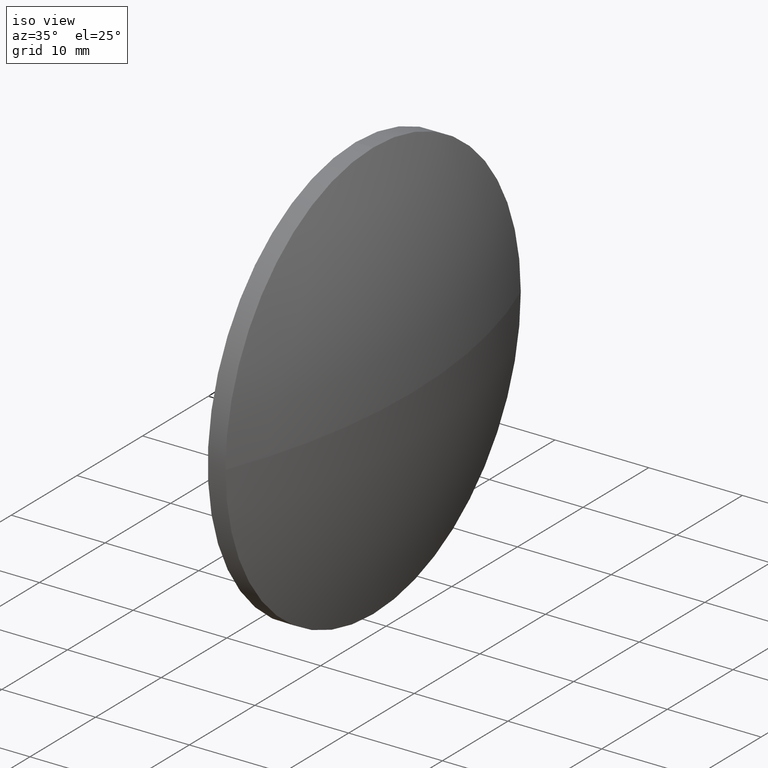
[diagram: clean part render]
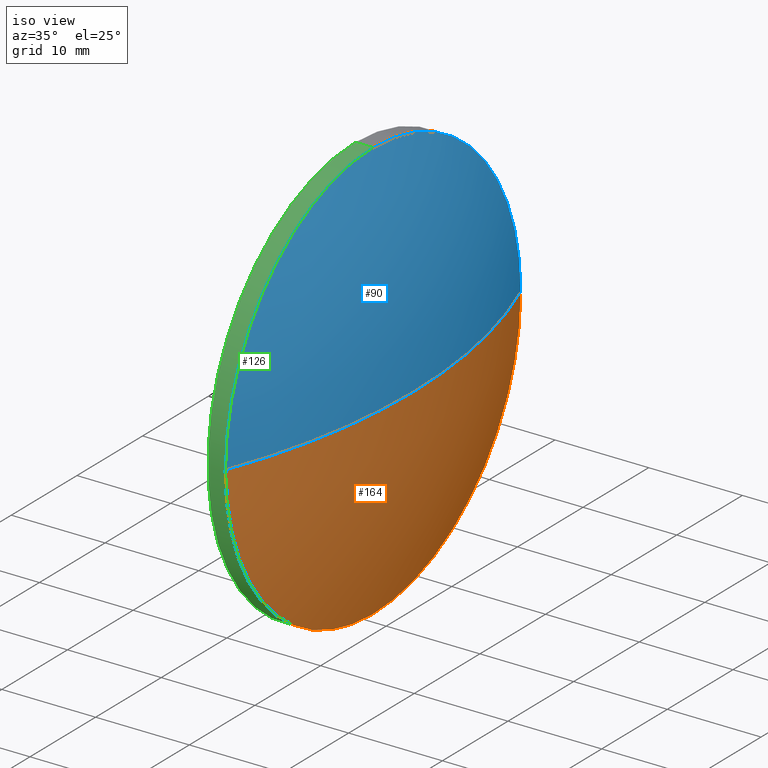
[diagram: same view with three faces highlighted in distinct colors, each labeled with its STEP entity id]
A machine part, iso view with three faces highlighted in distinct colors.
Their STEP definitions:

[orange] entity #164 — the highlighted spherical surface has radius 62.2297 mm.
#1 = DIRECTION ( 'NONE',  ( -1.000000000000000000, -0.0000000000000000000, -0.0000000000000000000 ) ) ;
#4 = EDGE_CURVE ( 'NONE', #92, #18, #85, .T. ) ;
#7 = CIRCLE ( 'NONE', #161, 22.50000000000000000 ) ;
#8 = EDGE_CURVE ( 'NONE', #86, #107, #7, .T. ) ;
#10 = EDGE_CURVE ( 'NONE', #92, #86, #149, .T. ) ;
#11 = ORIENTED_EDGE ( 'NONE', *, *, #13, .F. ) ;
#13 = EDGE_CURVE ( 'NONE', #107, #18, #115, .T. ) ;
#16 = DIRECTION ( 'NONE',  ( 1.000000000000000000, 0.0000000000000000000, 0.0000000000000000000 ) ) ;
#18 = VERTEX_POINT ( 'NONE', #63 ) ;
#20 = CARTESIAN_POINT ( 'NONE',  ( 330.8057438110801100, -20.30678025366819700, 0.0000000000000000000 ) ) ;
#22 = CARTESIAN_POINT ( 'NONE',  ( 393.0354468989660900, -20.30678025366819400, 0.0000000000000000000 ) ) ;
#28 = EDGE_LOOP ( 'NONE', ( #71, #186, #11, #128 ) ) ;
#30 = DIRECTION ( 'NONE',  ( 0.0000000000000000000, 0.0000000000000000000, 1.000000000000000000 ) ) ;
#31 = CARTESIAN_POINT ( 'NONE',  ( 388.8254468989661100, -20.30678025366819400, 0.0000000000000000000 ) ) ;
#48 = AXIS2_PLACEMENT_3D ( 'NONE', #76, #108, #16 ) ;
#49 = DIRECTION ( 'NONE',  ( 0.0000000000000000000, 0.0000000000000000000, 1.000000000000000000 ) ) ;
#51 = DIRECTION ( 'NONE',  ( -1.000000000000000000, -0.0000000000000000000, -0.0000000000000000000 ) ) ;
#53 = AXIS2_PLACEMENT_3D ( 'NONE', #104, #172, #89 ) ;
#63 = CARTESIAN_POINT ( 'NONE',  ( 388.8254468989661100, -42.80678025366819400, -2.755455298081544800E-015 ) ) ;
#71 = ORIENTED_EDGE ( 'NONE', *, *, #10, .F. ) ;
#76 = CARTESIAN_POINT ( 'NONE',  ( 330.8057438110801100, -20.30678025366819700, 0.0000000000000000000 ) ) ;
#85 = CIRCLE ( 'NONE', #53, 62.22970308788594500 ) ;
#86 = VERTEX_POINT ( 'NONE', #178 ) ;
#89 = DIRECTION ( 'NONE',  ( 0.0000000000000000000, 1.000000000000000000, 1.224646799147353500E-016 ) ) ;
#91 = SPHERICAL_SURFACE ( 'NONE', #175, 62.22970308788595200 ) ;
#92 = VERTEX_POINT ( 'NONE', #22 ) ;
#94 = DIRECTION ( 'NONE',  ( 0.0000000000000000000, 1.000000000000000000, 0.0000000000000000000 ) ) ;
#104 = CARTESIAN_POINT ( 'NONE',  ( 330.8057438110801100, -20.30678025366819700, 0.0000000000000000000 ) ) ;
#107 = VERTEX_POINT ( 'NONE', #163 ) ;
#108 = DIRECTION ( 'NONE',  ( -0.0000000000000000000, 0.0000000000000000000, 1.000000000000000000 ) ) ;
#115 = CIRCLE ( 'NONE', #144, 22.50000000000000000 ) ;
#119 = CARTESIAN_POINT ( 'NONE',  ( 388.8254468989661100, -20.30678025366819400, 0.0000000000000000000 ) ) ;
#128 = ORIENTED_EDGE ( 'NONE', *, *, #8, .F. ) ;
#133 = FACE_OUTER_BOUND ( 'NONE', #28, .T. ) ;
#144 = AXIS2_PLACEMENT_3D ( 'NONE', #119, #51, #30 ) ;
#149 = CIRCLE ( 'NONE', #48, 62.22970308788594500 ) ;
#161 = AXIS2_PLACEMENT_3D ( 'NONE', #31, #1, #49 ) ;
#162 = DIRECTION ( 'NONE',  ( -0.0000000000000000000, 0.0000000000000000000, -1.000000000000000000 ) ) ;
#163 = CARTESIAN_POINT ( 'NONE',  ( 388.8254468989661100, -20.30678025366819000, -22.50000000000000000 ) ) ;
#164 = ADVANCED_FACE ( 'NONE', ( #133 ), #91, .T. ) ;
#172 = DIRECTION ( 'NONE',  ( 0.0000000000000000000, 1.224646799147353200E-016, -1.000000000000000000 ) ) ;
#175 = AXIS2_PLACEMENT_3D ( 'NONE', #20, #162, #94 ) ;
#178 = CARTESIAN_POINT ( 'NONE',  ( 388.8254468989661100, 2.193219746331801700, 0.0000000000000000000 ) ) ;
#186 = ORIENTED_EDGE ( 'NONE', *, *, #4, .T. ) ;

[blue] entity #90 — the highlighted spherical surface has radius 62.2297 mm.
#3 = DIRECTION ( 'NONE',  ( -0.0000000000000000000, 0.0000000000000000000, -1.000000000000000000 ) ) ;
#4 = EDGE_CURVE ( 'NONE', #92, #18, #85, .T. ) ;
#6 = CARTESIAN_POINT ( 'NONE',  ( 388.8254468989661100, -20.30678025366819400, 0.0000000000000000000 ) ) ;
#10 = EDGE_CURVE ( 'NONE', #92, #86, #149, .T. ) ;
#16 = DIRECTION ( 'NONE',  ( 1.000000000000000000, 0.0000000000000000000, 0.0000000000000000000 ) ) ;
#18 = VERTEX_POINT ( 'NONE', #63 ) ;
#19 = EDGE_CURVE ( 'NONE', #18, #79, #118, .T. ) ;
#22 = CARTESIAN_POINT ( 'NONE',  ( 393.0354468989660900, -20.30678025366819400, 0.0000000000000000000 ) ) ;
#27 = AXIS2_PLACEMENT_3D ( 'NONE', #6, #80, #177 ) ;
#32 = CIRCLE ( 'NONE', #27, 22.50000000000000000 ) ;
#37 = ORIENTED_EDGE ( 'NONE', *, *, #78, .F. ) ;
#48 = AXIS2_PLACEMENT_3D ( 'NONE', #76, #108, #16 ) ;
#53 = AXIS2_PLACEMENT_3D ( 'NONE', #104, #172, #89 ) ;
#60 = CARTESIAN_POINT ( 'NONE',  ( 388.8254468989661100, -20.30678025366819400, 22.50000000000000000 ) ) ;
#63 = CARTESIAN_POINT ( 'NONE',  ( 388.8254468989661100, -42.80678025366819400, -2.755455298081544800E-015 ) ) ;
#65 = CARTESIAN_POINT ( 'NONE',  ( 330.8057438110801100, -20.30678025366819700, 0.0000000000000000000 ) ) ;
#76 = CARTESIAN_POINT ( 'NONE',  ( 330.8057438110801100, -20.30678025366819700, 0.0000000000000000000 ) ) ;
#78 = EDGE_CURVE ( 'NONE', #79, #86, #32, .T. ) ;
#79 = VERTEX_POINT ( 'NONE', #60 ) ;
#80 = DIRECTION ( 'NONE',  ( -1.000000000000000000, -0.0000000000000000000, -0.0000000000000000000 ) ) ;
#85 = CIRCLE ( 'NONE', #53, 62.22970308788594500 ) ;
#86 = VERTEX_POINT ( 'NONE', #178 ) ;
#88 = EDGE_LOOP ( 'NONE', ( #154, #174, #37, #114 ) ) ;
#89 = DIRECTION ( 'NONE',  ( 0.0000000000000000000, 1.000000000000000000, 1.224646799147353500E-016 ) ) ;
#90 = ADVANCED_FACE ( 'NONE', ( #143 ), #155, .T. ) ;
#92 = VERTEX_POINT ( 'NONE', #22 ) ;
#104 = CARTESIAN_POINT ( 'NONE',  ( 330.8057438110801100, -20.30678025366819700, 0.0000000000000000000 ) ) ;
#105 = CARTESIAN_POINT ( 'NONE',  ( 388.8254468989661100, -20.30678025366819400, 0.0000000000000000000 ) ) ;
#108 = DIRECTION ( 'NONE',  ( -0.0000000000000000000, 0.0000000000000000000, 1.000000000000000000 ) ) ;
#114 = ORIENTED_EDGE ( 'NONE', *, *, #19, .F. ) ;
#118 = CIRCLE ( 'NONE', #184, 22.50000000000000000 ) ;
#127 = DIRECTION ( 'NONE',  ( 0.0000000000000000000, 0.0000000000000000000, 1.000000000000000000 ) ) ;
#131 = AXIS2_PLACEMENT_3D ( 'NONE', #65, #3, #140 ) ;
#140 = DIRECTION ( 'NONE',  ( 0.0000000000000000000, 1.000000000000000000, 0.0000000000000000000 ) ) ;
#143 = FACE_OUTER_BOUND ( 'NONE', #88, .T. ) ;
#149 = CIRCLE ( 'NONE', #48, 62.22970308788594500 ) ;
#154 = ORIENTED_EDGE ( 'NONE', *, *, #4, .F. ) ;
#155 = SPHERICAL_SURFACE ( 'NONE', #131, 62.22970308788595200 ) ;
#172 = DIRECTION ( 'NONE',  ( 0.0000000000000000000, 1.224646799147353200E-016, -1.000000000000000000 ) ) ;
#173 = DIRECTION ( 'NONE',  ( -1.000000000000000000, -0.0000000000000000000, -0.0000000000000000000 ) ) ;
#174 = ORIENTED_EDGE ( 'NONE', *, *, #10, .T. ) ;
#177 = DIRECTION ( 'NONE',  ( 0.0000000000000000000, 0.0000000000000000000, 1.000000000000000000 ) ) ;
#178 = CARTESIAN_POINT ( 'NONE',  ( 388.8254468989661100, 2.193219746331801700, 0.0000000000000000000 ) ) ;
#184 = AXIS2_PLACEMENT_3D ( 'NONE', #105, #173, #127 ) ;

[green] entity #126 — the highlighted cylindrical surface (partial cylindrical patch) has radius 22.5 mm, axis along (-1, -0, -0).
#12 = EDGE_LOOP ( 'NONE', ( #151, #103, #59, #25, #159 ) ) ;
#13 = EDGE_CURVE ( 'NONE', #107, #18, #115, .T. ) ;
#17 = CIRCLE ( 'NONE', #84, 22.50000000000000000 ) ;
#18 = VERTEX_POINT ( 'NONE', #63 ) ;
#19 = EDGE_CURVE ( 'NONE', #18, #79, #118, .T. ) ;
#23 = DIRECTION ( 'NONE',  ( -1.000000000000000000, -0.0000000000000000000, -0.0000000000000000000 ) ) ;
#25 = ORIENTED_EDGE ( 'NONE', *, *, #167, .T. ) ;
#30 = DIRECTION ( 'NONE',  ( 0.0000000000000000000, 0.0000000000000000000, 1.000000000000000000 ) ) ;
#36 = CARTESIAN_POINT ( 'NONE',  ( 386.9354468989661200, -20.30678025366819400, 22.50000000000000000 ) ) ;
#39 = DIRECTION ( 'NONE',  ( 0.0000000000000000000, 0.0000000000000000000, 1.000000000000000000 ) ) ;
#41 = DIRECTION ( 'NONE',  ( -1.000000000000000000, -0.0000000000000000000, -0.0000000000000000000 ) ) ;
#46 = VERTEX_POINT ( 'NONE', #111 ) ;
#51 = DIRECTION ( 'NONE',  ( -1.000000000000000000, -0.0000000000000000000, -0.0000000000000000000 ) ) ;
#59 = ORIENTED_EDGE ( 'NONE', *, *, #19, .T. ) ;
#60 = CARTESIAN_POINT ( 'NONE',  ( 388.8254468989661100, -20.30678025366819400, 22.50000000000000000 ) ) ;
#61 = AXIS2_PLACEMENT_3D ( 'NONE', #176, #148, #139 ) ;
#63 = CARTESIAN_POINT ( 'NONE',  ( 388.8254468989661100, -42.80678025366819400, -2.755455298081544800E-015 ) ) ;
#69 = EDGE_CURVE ( 'NONE', #46, #147, #17, .T. ) ;
#79 = VERTEX_POINT ( 'NONE', #60 ) ;
#82 = FACE_OUTER_BOUND ( 'NONE', #12, .T. ) ;
#84 = AXIS2_PLACEMENT_3D ( 'NONE', #97, #41, #39 ) ;
#93 = CARTESIAN_POINT ( 'NONE',  ( 382.8923254294812800, -20.30678025366819400, 22.50000000000000000 ) ) ;
#97 = CARTESIAN_POINT ( 'NONE',  ( 386.9354468989661200, -20.30678025366819400, 0.0000000000000000000 ) ) ;
#102 = EDGE_CURVE ( 'NONE', #107, #46, #181, .T. ) ;
#103 = ORIENTED_EDGE ( 'NONE', *, *, #13, .T. ) ;
#105 = CARTESIAN_POINT ( 'NONE',  ( 388.8254468989661100, -20.30678025366819400, 0.0000000000000000000 ) ) ;
#107 = VERTEX_POINT ( 'NONE', #163 ) ;
#110 = DIRECTION ( 'NONE',  ( -1.000000000000000000, -0.0000000000000000000, -0.0000000000000000000 ) ) ;
#111 = CARTESIAN_POINT ( 'NONE',  ( 386.9354468989661200, -20.30678025366819000, -22.50000000000000000 ) ) ;
#115 = CIRCLE ( 'NONE', #144, 22.50000000000000000 ) ;
#118 = CIRCLE ( 'NONE', #184, 22.50000000000000000 ) ;
#119 = CARTESIAN_POINT ( 'NONE',  ( 388.8254468989661100, -20.30678025366819400, 0.0000000000000000000 ) ) ;
#126 = ADVANCED_FACE ( 'NONE', ( #82 ), #183, .T. ) ;
#127 = DIRECTION ( 'NONE',  ( 0.0000000000000000000, 0.0000000000000000000, 1.000000000000000000 ) ) ;
#134 = VECTOR ( 'NONE', #110, 1000.000000000000000 ) ;
#136 = LINE ( 'NONE', #93, #134 ) ;
#139 = DIRECTION ( 'NONE',  ( 0.0000000000000000000, 0.0000000000000000000, 1.000000000000000000 ) ) ;
#144 = AXIS2_PLACEMENT_3D ( 'NONE', #119, #51, #30 ) ;
#145 = VECTOR ( 'NONE', #23, 1000.000000000000000 ) ;
#147 = VERTEX_POINT ( 'NONE', #36 ) ;
#148 = DIRECTION ( 'NONE',  ( -1.000000000000000000, -0.0000000000000000000, -0.0000000000000000000 ) ) ;
#151 = ORIENTED_EDGE ( 'NONE', *, *, #102, .F. ) ;
#159 = ORIENTED_EDGE ( 'NONE', *, *, #69, .F. ) ;
#163 = CARTESIAN_POINT ( 'NONE',  ( 388.8254468989661100, -20.30678025366819000, -22.50000000000000000 ) ) ;
#167 = EDGE_CURVE ( 'NONE', #79, #147, #136, .T. ) ;
#173 = DIRECTION ( 'NONE',  ( -1.000000000000000000, -0.0000000000000000000, -0.0000000000000000000 ) ) ;
#176 = CARTESIAN_POINT ( 'NONE',  ( 382.8923254294812800, -20.30678025366819400, 0.0000000000000000000 ) ) ;
#179 = CARTESIAN_POINT ( 'NONE',  ( 382.8923254294812800, -20.30678025366819000, -22.50000000000000000 ) ) ;
#181 = LINE ( 'NONE', #179, #145 ) ;
#183 = CYLINDRICAL_SURFACE ( 'NONE', #61, 22.50000000000000000 ) ;
#184 = AXIS2_PLACEMENT_3D ( 'NONE', #105, #173, #127 ) ;